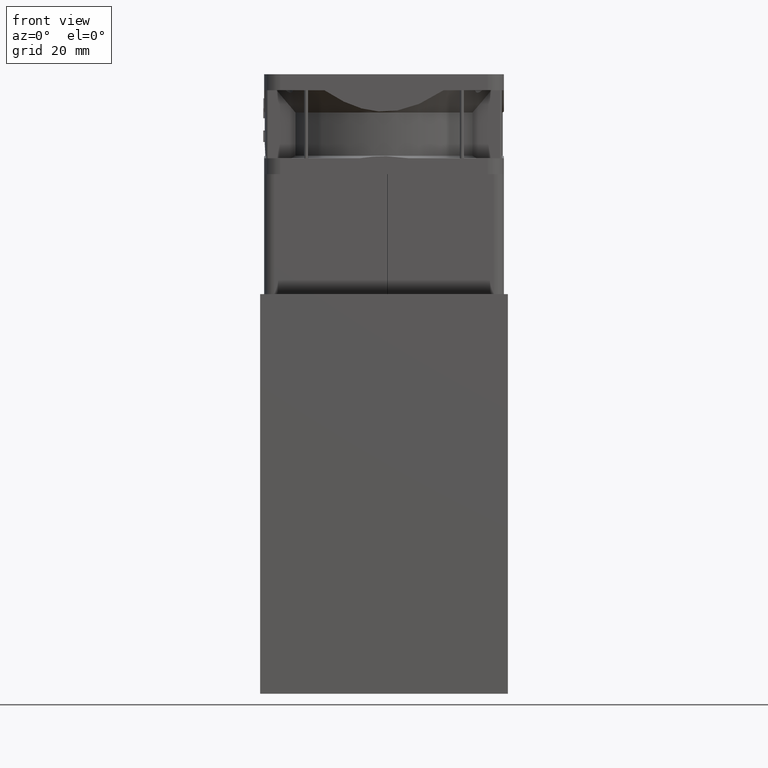
[diagram: clean part render]
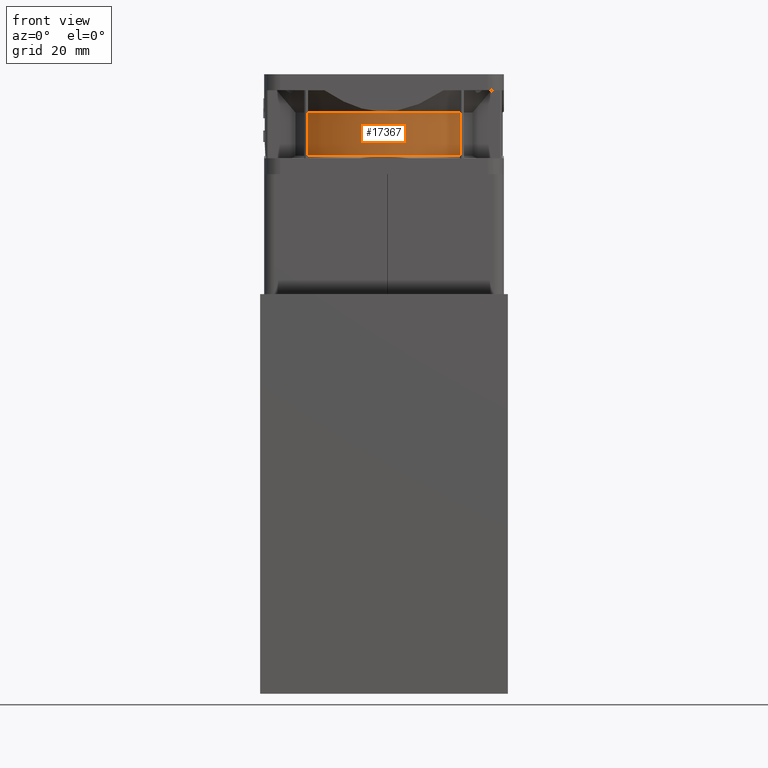
[diagram: same view with one face highlighted and labeled with its STEP entity id]
A machine part, front view. The second image highlights one B-rep face of the part: STEP entity #17367.
In plain terms, the highlighted cylindrical surface (partial cylindrical patch) has radius 29.85 mm, axis along (-0, -0, -1).
Its self-contained STEP definition (entity closure, byte-faithful):
#47 = CARTESIAN_POINT ( 'NONE',  ( 0.000000000000000000, 0.000000000000000000, 9.567796610168988636 ) ) ;
#232 = EDGE_CURVE ( 'NONE', #19966, #10743, #28478, .T. ) ;
#457 = ORIENTED_EDGE ( 'NONE', *, *, #17375, .F. ) ;
#1082 = EDGE_LOOP ( 'NONE', ( #15120, #12496, #457, #11436 ) ) ;
#4402 = FACE_OUTER_BOUND ( 'NONE', #1082, .T. ) ;
#4738 = DIRECTION ( 'NONE',  ( 0.000000000000000000, -6.726232628759121940E-44, 1.000000000000000000 ) ) ;
#4890 = DIRECTION ( 'NONE',  ( 0.7712635688452176286, 0.6365159128978145064, 0.000000000000000000 ) ) ;
#5316 = CIRCLE ( 'NONE', #30004, 29.85000000000006182 ) ;
#5673 = DIRECTION ( 'NONE',  ( -5.936701565992988041E-08, -8.115165507030984589E-14, -0.9999999999999983347 ) ) ;
#6680 = DIRECTION ( 'NONE',  ( -2.565185830920002421E-09, 1.045049328828000813E-08, 0.9999999999999998890 ) ) ;
#6741 = VECTOR ( 'NONE', #5673, 999.9999999999998863 ) ;
#7768 = VERTEX_POINT ( 'NONE', #10528 ) ;
#8906 = AXIS2_PLACEMENT_3D ( 'NONE', #24613, #19769, #27029 ) ;
#9891 = LINE ( 'NONE', #14567, #25374 ) ;
#10528 = CARTESIAN_POINT ( 'NONE',  ( 23.02221753003002291, 19.00000000000002132, 9.567796610168988636 ) ) ;
#10743 = VERTEX_POINT ( 'NONE', #18929 ) ;
#11436 = ORIENTED_EDGE ( 'NONE', *, *, #28809, .T. ) ;
#11650 = DIRECTION ( 'NONE',  ( 0.000000000000000000, 6.726232628759121940E-44, -1.000000000000000000 ) ) ;
#11968 = CARTESIAN_POINT ( 'NONE',  ( 0.000000000000000000, 0.000000000000000000, 9.351529829663002502 ) ) ;
#12496 = ORIENTED_EDGE ( 'NONE', *, *, #27475, .T. ) ;
#14042 = AXIS2_PLACEMENT_3D ( 'NONE', #11968, #4738, #14236 ) ;
#14236 = DIRECTION ( 'NONE',  ( 0.7071067811865475727, -0.7071067811865475727, 0.000000000000000000 ) ) ;
#14567 = CARTESIAN_POINT ( 'NONE',  ( 23.02221753003002291, 19.00000000000002132, 9.567796610168988636 ) ) ;
#15120 = ORIENTED_EDGE ( 'NONE', *, *, #232, .F. ) ;
#15819 = LINE ( 'NONE', #25339, #6741 ) ;
#17367 = ADVANCED_FACE ( 'NONE', ( #4402 ), #31830, .T. ) ;
#17375 = EDGE_CURVE ( 'NONE', #7768, #22328, #5316, .T. ) ;
#18929 = CARTESIAN_POINT ( 'NONE',  ( 23.02221750229002595, 19.00000011301002090, 20.38113567811000593 ) ) ;
#19769 = DIRECTION ( 'NONE',  ( 0.000000000000000000, -6.726232628759121940E-44, 1.000000000000000000 ) ) ;
#19966 = VERTEX_POINT ( 'NONE', #27783 ) ;
#22260 = CARTESIAN_POINT ( 'NONE',  ( 23.02221753003002291, -19.00000000000002132, 9.567796610168988636 ) ) ;
#22328 = VERTEX_POINT ( 'NONE', #22260 ) ;
#24613 = CARTESIAN_POINT ( 'NONE',  ( 0.000000000000000000, 0.000000000000000000, 20.38113563548998997 ) ) ;
#25339 = CARTESIAN_POINT ( 'NONE',  ( 23.02221817199002274, -19.00000000000002132, 20.38113464873000780 ) ) ;
#25374 = VECTOR ( 'NONE', #6680, 1000.000000000000114 ) ;
#27029 = DIRECTION ( 'NONE',  ( 0.7712635688452176286, -0.6365159128978145064, 0.000000000000000000 ) ) ;
#27475 = EDGE_CURVE ( 'NONE', #19966, #22328, #15819, .T. ) ;
#27783 = CARTESIAN_POINT ( 'NONE',  ( 23.02221817199002274, -19.00000000000002132, 20.38113464873000780 ) ) ;
#28478 = CIRCLE ( 'NONE', #8906, 29.85000000000006182 ) ;
#28809 = EDGE_CURVE ( 'NONE', #7768, #10743, #9891, .T. ) ;
#30004 = AXIS2_PLACEMENT_3D ( 'NONE', #47, #11650, #4890 ) ;
#31830 = CYLINDRICAL_SURFACE ( 'NONE', #14042, 29.85000000000004761 ) ;